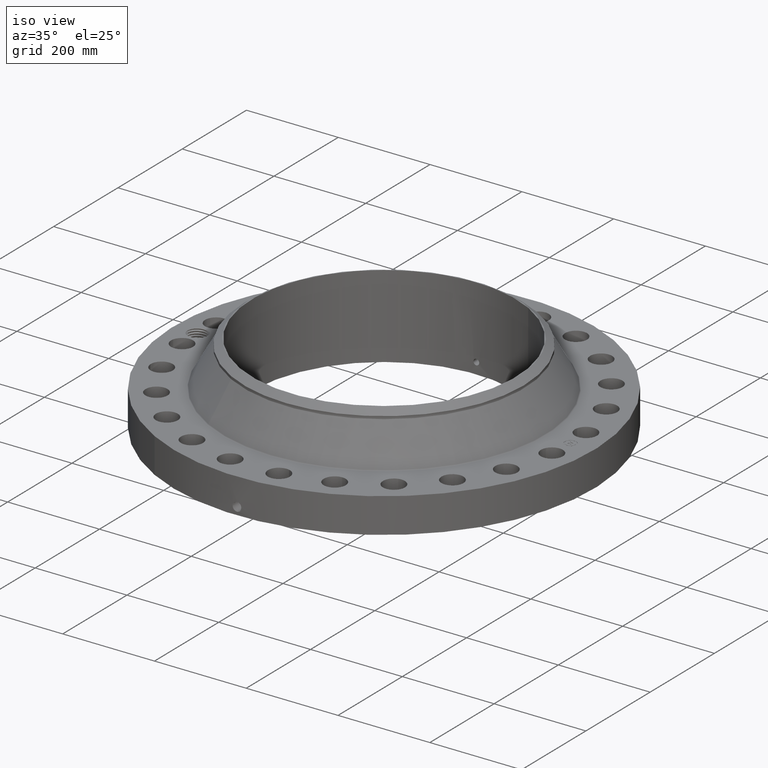
[diagram: clean part render]
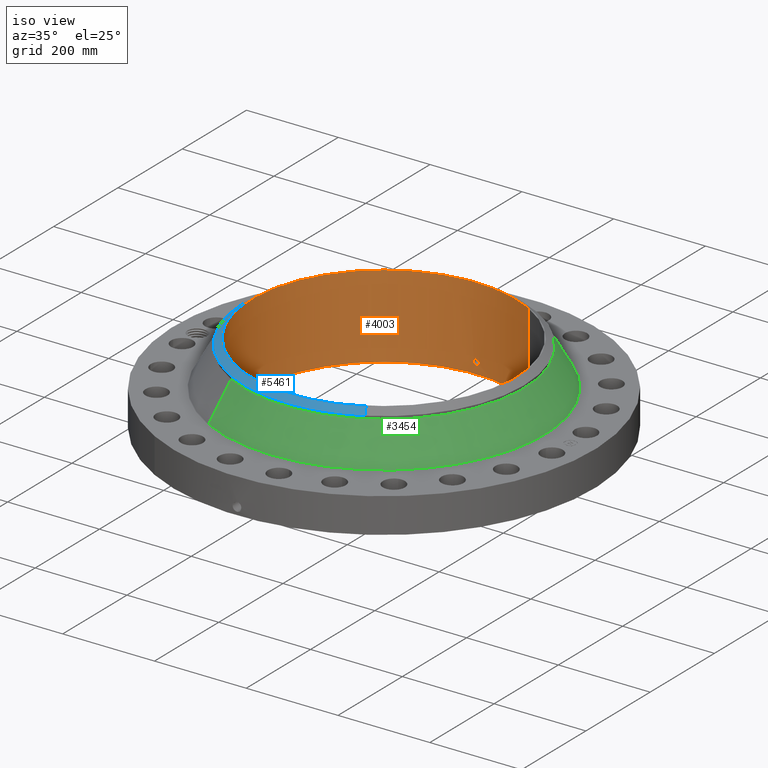
[diagram: same view with three faces highlighted in distinct colors, each labeled with its STEP entity id]
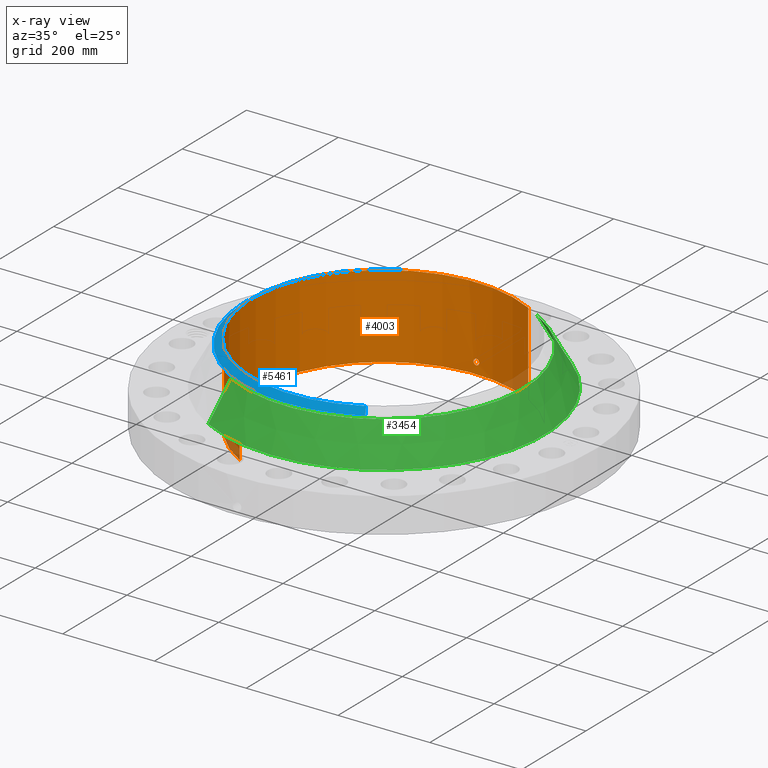
[diagram: x-ray of the same camera — body ghosted, the three highlighted faces saturated]
A machine part, iso view with three faces highlighted in distinct colors.
The next image is the same camera in x-ray (body ghosted, the three faces saturated) — at least one of them is partly hidden behind the body in this view.
Their STEP definitions:

[orange] entity #4003 — the highlighted cylindrical surface (partial cylindrical patch) has radius 287.325 mm, axis along (0, 0, -1).
#3137=AXIS2_PLACEMENT_3D('Circle Axis2P3D',#3135,#3136,$) ;
#3880=AXIS2_PLACEMENT_3D('Cylinder Axis2P3D',#3877,#3878,#3879) ;
#3952=AXIS2_PLACEMENT_3D('Circle Axis2P3D',#3950,#3951,$) ;
#3130=CARTESIAN_POINT('Vertex',(5.42326169271,9.92721394014,-7.49706508597E-014)) ;
#3132=CARTESIAN_POINT('Vertex',(-5.42326169271,-9.92721394014,-7.49706508597E-014)) ;
#3135=CARTESIAN_POINT('Axis2P3D Location',(0.,0.,0.)) ;
#3877=CARTESIAN_POINT('Axis2P3D Location',(0.,0.,3.56500000001)) ;
#3886=CARTESIAN_POINT('Vertex',(5.42326169271,9.92721394014,7.13000000003)) ;
#3888=CARTESIAN_POINT('Vertex',(-5.42326169271,-9.92721394014,7.13000000003)) ;
#3891=CARTESIAN_POINT('Line Origine',(5.42326169271,9.92721394014,3.56500000001)) ;
#3896=CARTESIAN_POINT('Line Origine',(-5.42326169271,-9.92721394014,3.56500000001)) ;
#3950=CARTESIAN_POINT('Axis2P3D Location',(0.,0.,7.13000000003)) ;
#3962=CARTESIAN_POINT('Control Point',(0.219395640473,11.3098722165,1.05985638466)) ;
#3963=CARTESIAN_POINT('Control Point',(0.194442717929,11.3103562682,1.10553240299)) ;
#3964=CARTESIAN_POINT('Control Point',(0.157603929452,11.3110020461,1.14471334335)) ;
#3965=CARTESIAN_POINT('Control Point',(0.111104547885,11.3116301275,1.1732445407)) ;
#3966=CARTESIAN_POINT('Control Point',(0.0336685367897,11.3121298317,1.19588328385)) ;
#3967=CARTESIAN_POINT('Control Point',(-0.0446767041985,11.3119571131,1.18805560118)) ;
#3968=CARTESIAN_POINT('Control Point',(-0.0703080519634,11.3118230335,1.18204197647)) ;
#3969=CARTESIAN_POINT('Control Point',(-0.143966159156,11.3112305629,1.15420631027)) ;
#3970=CARTESIAN_POINT('Control Point',(-0.203255044701,11.3102635705,1.09948508965)) ;
#3971=CARTESIAN_POINT('Control Point',(-0.232218016858,11.3096294446,1.05324118854)) ;
#3972=CARTESIAN_POINT('Control Point',(-0.255841932634,11.3091083033,0.975096303466)) ;
#3973=CARTESIAN_POINT('Control Point',(-0.248280257416,11.3092749771,0.895736354901)) ;
#3974=CARTESIAN_POINT('Control Point',(-0.242046540814,11.3094143696,0.869177906278)) ;
#3975=CARTESIAN_POINT('Control Point',(-0.232313923617,11.30962162,0.843790374032)) ;
#3976=CARTESIAN_POINT('Control Point',(-0.219395640473,11.3098722165,0.820143615352)) ;
#3977=CARTESIAN_POINT('Vertex',(0.219395640473,11.3098722165,1.05985638466)) ;
#3979=CARTESIAN_POINT('Vertex',(-0.219395640473,11.3098722165,0.820143615352)) ;
#3983=CARTESIAN_POINT('Control Point',(-0.219395640473,11.3098722165,0.820143615352)) ;
#3984=CARTESIAN_POINT('Control Point',(-0.194442717959,11.3103562682,0.77446759707)) ;
#3985=CARTESIAN_POINT('Control Point',(-0.157603929543,11.3110020461,0.735286656759)) ;
#3986=CARTESIAN_POINT('Control Point',(-0.111104547757,11.3116301275,0.70675545927)) ;
#3987=CARTESIAN_POINT('Control Point',(-0.0336685367255,11.3121298317,0.684116716161)) ;
#3988=CARTESIAN_POINT('Control Point',(0.0446767041977,11.3119571131,0.691944398826)) ;
#3989=CARTESIAN_POINT('Control Point',(0.070308051965,11.3118230335,0.697958023541)) ;
#3990=CARTESIAN_POINT('Control Point',(0.143966159145,11.3112305629,0.725793689731)) ;
#3991=CARTESIAN_POINT('Control Point',(0.203255044681,11.3102635705,0.780514910337)) ;
#3992=CARTESIAN_POINT('Control Point',(0.232218016867,11.3096294446,0.826758811489)) ;
#3993=CARTESIAN_POINT('Control Point',(0.255841932632,11.3091083033,0.904903696554)) ;
#3994=CARTESIAN_POINT('Control Point',(0.248280257417,11.3092749771,0.984263645106)) ;
#3995=CARTESIAN_POINT('Control Point',(0.242046540813,11.3094143696,1.01082209373)) ;
#3996=CARTESIAN_POINT('Control Point',(0.232313923617,11.30962162,1.03620962598)) ;
#3997=CARTESIAN_POINT('Control Point',(0.219395640473,11.3098722165,1.05985638466)) ;
#3136=DIRECTION('Axis2P3D Direction',(0.,0.,-0.0393700787402)) ;
#3878=DIRECTION('Axis2P3D Direction',(0.,0.,-0.0393700787402)) ;
#3879=DIRECTION('Axis2P3D XDirection',(-0.0188750212049,-0.0345504945626,0.)) ;
#3892=DIRECTION('Vector Direction',(0.,0.,-0.0393700787402)) ;
#3897=DIRECTION('Vector Direction',(0.,0.,-0.0393700787402)) ;
#3951=DIRECTION('Axis2P3D Direction',(0.,0.,-0.0393700787402)) ;
#3893=VECTOR('Line Direction',#3892,0.0393700787402) ;
#3898=VECTOR('Line Direction',#3897,0.0393700787402) ;
#3956=ORIENTED_EDGE('',*,*,#3954,.F.) ;
#3957=ORIENTED_EDGE('',*,*,#3900,.T.) ;
#3958=ORIENTED_EDGE('',*,*,#3139,.T.) ;
#3959=ORIENTED_EDGE('',*,*,#3895,.F.) ;
#4000=ORIENTED_EDGE('',*,*,#3981,.F.) ;
#4001=ORIENTED_EDGE('',*,*,#3998,.F.) ;
#4002=FACE_BOUND('',#3999,.T.) ;
#4003=ADVANCED_FACE('PartBody',(#3960,#4002),#3881,.F.) ;
#3961=B_SPLINE_CURVE_WITH_KNOTS('',5,(#3962,#3963,#3964,#3965,#3966,#3967,#3968,#3969,#3970,#3971,#3972,#3973,#3974,#3975,#3976),.UNSPECIFIED.,.F.,.U.,(6,3,3,3,6),(0.,9.34841004679,14.0230093043,23.373056062,28.2127860659),.UNSPECIFIED.) ;
#3982=B_SPLINE_CURVE_WITH_KNOTS('',5,(#3983,#3984,#3985,#3986,#3987,#3988,#3989,#3990,#3991,#3992,#3993,#3994,#3995,#3996,#3997),.UNSPECIFIED.,.F.,.U.,(6,3,3,3,6),(0.,9.34841003524,14.0230092926,23.3730560481,28.2127860518),.UNSPECIFIED.) ;
#3138=CIRCLE('generated circle',#3137,11.312) ;
#3953=CIRCLE('generated circle',#3952,11.312) ;
#3881=CYLINDRICAL_SURFACE('generated cylinder',#3880,11.312) ;
#3139=EDGE_CURVE('',#3133,#3131,#3138,.T.) ;
#3895=EDGE_CURVE('',#3887,#3131,#3894,.T.) ;
#3900=EDGE_CURVE('',#3889,#3133,#3899,.T.) ;
#3954=EDGE_CURVE('',#3889,#3887,#3953,.T.) ;
#3981=EDGE_CURVE('',#3978,#3980,#3961,.T.) ;
#3998=EDGE_CURVE('',#3980,#3978,#3982,.T.) ;
#3955=EDGE_LOOP('',(#3956,#3957,#3958,#3959)) ;
#3999=EDGE_LOOP('',(#4000,#4001)) ;
#3960=FACE_OUTER_BOUND('',#3955,.T.) ;
#3894=LINE('Line',#3891,#3893) ;
#3899=LINE('Line',#3896,#3898) ;
#3131=VERTEX_POINT('',#3130) ;
#3133=VERTEX_POINT('',#3132) ;
#3887=VERTEX_POINT('',#3886) ;
#3889=VERTEX_POINT('',#3888) ;
#3978=VERTEX_POINT('',#3977) ;
#3980=VERTEX_POINT('',#3979) ;

[blue] entity #5461 — the highlighted conical surface has half-angle 52.5 deg.
#4263=AXIS2_PLACEMENT_3D('Circle Axis2P3D',#4261,#4262,$) ;
#4276=AXIS2_PLACEMENT_3D('Circle Axis2P3D',#4274,#4275,$) ;
#5078=AXIS2_PLACEMENT_3D('Circle Axis2P3D',#5076,#5077,$) ;
#5434=AXIS2_PLACEMENT_3D('Cone Axis2P3D',#5431,#5432,#5433) ;
#4244=CARTESIAN_POINT('Vertex',(-5.75310646327,-10.5309907427,6.66249848017)) ;
#4258=CARTESIAN_POINT('Vertex',(5.75310646327,-10.5309907427,6.66249848017)) ;
#4261=CARTESIAN_POINT('Axis2P3D Location',(0.,0.,6.66249848017)) ;
#4274=CARTESIAN_POINT('Axis2P3D Location',(0.,0.,6.66249848017)) ;
#4278=CARTESIAN_POINT('Vertex',(-5.75310646327,10.5309907427,6.66249848017)) ;
#5071=CARTESIAN_POINT('Vertex',(5.46101173512,-9.99631492927,7.13000000003)) ;
#5073=CARTESIAN_POINT('Vertex',(-5.46101173512,9.99631492927,7.13000000003)) ;
#5076=CARTESIAN_POINT('Axis2P3D Location',(0.,0.,7.13000000003)) ;
#5431=CARTESIAN_POINT('Axis2P3D Location',(0.,0.,7.13000000003)) ;
#5436=CARTESIAN_POINT('Line Origine',(-5.6070590992,10.263652836,6.8962492401)) ;
#5441=CARTESIAN_POINT('Line Origine',(5.6070590992,-10.263652836,6.8962492401)) ;
#4262=DIRECTION('Axis2P3D Direction',(0.,0.,-0.0393700787402)) ;
#4275=DIRECTION('Axis2P3D Direction',(0.,0.,-0.0393700787402)) ;
#5077=DIRECTION('Axis2P3D Direction',(0.,0.,-0.0393700787402)) ;
#5432=DIRECTION('Axis2P3D Direction',(-0.,-0.,-0.0393700787402)) ;
#5433=DIRECTION('Axis2P3D XDirection',(0.0188750212049,-0.0345504945626,0.)) ;
#5437=DIRECTION('Vector Direction',(-0.014974561121,0.02741075027,-0.023966985394)) ;
#5442=DIRECTION('Vector Direction',(0.014974561121,-0.02741075027,-0.023966985394)) ;
#5438=VECTOR('Line Direction',#5437,0.0393700787402) ;
#5443=VECTOR('Line Direction',#5442,0.0393700787402) ;
#5455=ORIENTED_EDGE('',*,*,#5445,.F.) ;
#5456=ORIENTED_EDGE('',*,*,#5080,.F.) ;
#5457=ORIENTED_EDGE('',*,*,#5440,.T.) ;
#5458=ORIENTED_EDGE('',*,*,#4280,.T.) ;
#5459=ORIENTED_EDGE('',*,*,#4265,.F.) ;
#5461=ADVANCED_FACE('PartBody',(#5460),#5435,.T.) ;
#4264=CIRCLE('generated circle',#4263,12.) ;
#4277=CIRCLE('generated circle',#4276,12.) ;
#5079=CIRCLE('generated circle',#5078,11.3907401575) ;
#5435=CONICAL_SURFACE('Cone',#5434,11.3907401575,0.916297857297) ;
#4265=EDGE_CURVE('',#4259,#4245,#4264,.T.) ;
#4280=EDGE_CURVE('',#4279,#4245,#4277,.F.) ;
#5080=EDGE_CURVE('',#5074,#5072,#5079,.F.) ;
#5440=EDGE_CURVE('',#5074,#4279,#5439,.T.) ;
#5445=EDGE_CURVE('',#5072,#4259,#5444,.T.) ;
#5454=EDGE_LOOP('',(#5455,#5456,#5457,#5458,#5459)) ;
#5460=FACE_OUTER_BOUND('',#5454,.T.) ;
#5439=LINE('Line',#5436,#5438) ;
#5444=LINE('Line',#5441,#5443) ;
#4245=VERTEX_POINT('',#4244) ;
#4259=VERTEX_POINT('',#4258) ;
#4279=VERTEX_POINT('',#4278) ;
#5072=VERTEX_POINT('',#5071) ;
#5074=VERTEX_POINT('',#5073) ;

[green] entity #3454 — the highlighted conical surface has half-angle 29.677 deg.
#2778=AXIS2_PLACEMENT_3D('Circle Axis2P3D',#2776,#2777,$) ;
#3427=AXIS2_PLACEMENT_3D('Cone Axis2P3D',#3424,#3425,#3426) ;
#3438=AXIS2_PLACEMENT_3D('Circle Axis2P3D',#3436,#3437,$) ;
#2773=CARTESIAN_POINT('Vertex',(6.60431416565,12.0891159906,3.31058748914)) ;
#2776=CARTESIAN_POINT('Axis2P3D Location',(0.,0.,3.31058748914)) ;
#2780=CARTESIAN_POINT('Vertex',(-6.60431416565,-12.0891159906,3.31058748914)) ;
#3424=CARTESIAN_POINT('Axis2P3D Location',(0.,0.,6.42627800773)) ;
#3429=CARTESIAN_POINT('Line Origine',(6.17871031446,11.3100533666,4.86843274843)) ;
#3433=CARTESIAN_POINT('Vertex',(5.75310646327,10.5309907427,6.42627800773)) ;
#3436=CARTESIAN_POINT('Axis2P3D Location',(0.,0.,6.42627800773)) ;
#3440=CARTESIAN_POINT('Vertex',(-5.75310646327,-10.5309907427,6.42627800773)) ;
#3443=CARTESIAN_POINT('Line Origine',(-6.17871031446,-11.3100533666,4.86843274843)) ;
#2777=DIRECTION('Axis2P3D Direction',(0.,0.,-0.0393700787402)) ;
#3425=DIRECTION('Axis2P3D Direction',(0.,0.,-0.0393700787402)) ;
#3426=DIRECTION('Axis2P3D XDirection',(-0.0188750212049,-0.0345504945626,0.)) ;
#3430=DIRECTION('Vector Direction',(0.00934510335449,0.0171060969485,-0.0342060461101)) ;
#3437=DIRECTION('Axis2P3D Direction',(0.,0.,-0.0393700787402)) ;
#3444=DIRECTION('Vector Direction',(-0.00934510335449,-0.0171060969485,-0.0342060461101)) ;
#3431=VECTOR('Line Direction',#3430,0.0393700787402) ;
#3445=VECTOR('Line Direction',#3444,0.0393700787402) ;
#3449=ORIENTED_EDGE('',*,*,#2782,.F.) ;
#3450=ORIENTED_EDGE('',*,*,#3435,.T.) ;
#3451=ORIENTED_EDGE('',*,*,#3442,.T.) ;
#3452=ORIENTED_EDGE('',*,*,#3447,.F.) ;
#3454=ADVANCED_FACE('PartBody',(#3453),#3428,.T.) ;
#2779=CIRCLE('generated circle',#2778,13.775474258) ;
#3439=CIRCLE('generated circle',#3438,12.) ;
#3428=CONICAL_SURFACE('Cone',#3427,12.,0.517954824348) ;
#2782=EDGE_CURVE('',#2774,#2781,#2779,.T.) ;
#3435=EDGE_CURVE('',#2774,#3434,#3432,.F.) ;
#3442=EDGE_CURVE('',#3434,#3441,#3439,.T.) ;
#3447=EDGE_CURVE('',#2781,#3441,#3446,.F.) ;
#3448=EDGE_LOOP('',(#3449,#3450,#3451,#3452)) ;
#3453=FACE_OUTER_BOUND('',#3448,.T.) ;
#3432=LINE('Line',#3429,#3431) ;
#3446=LINE('Line',#3443,#3445) ;
#2774=VERTEX_POINT('',#2773) ;
#2781=VERTEX_POINT('',#2780) ;
#3434=VERTEX_POINT('',#3433) ;
#3441=VERTEX_POINT('',#3440) ;